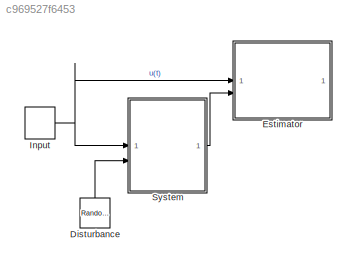
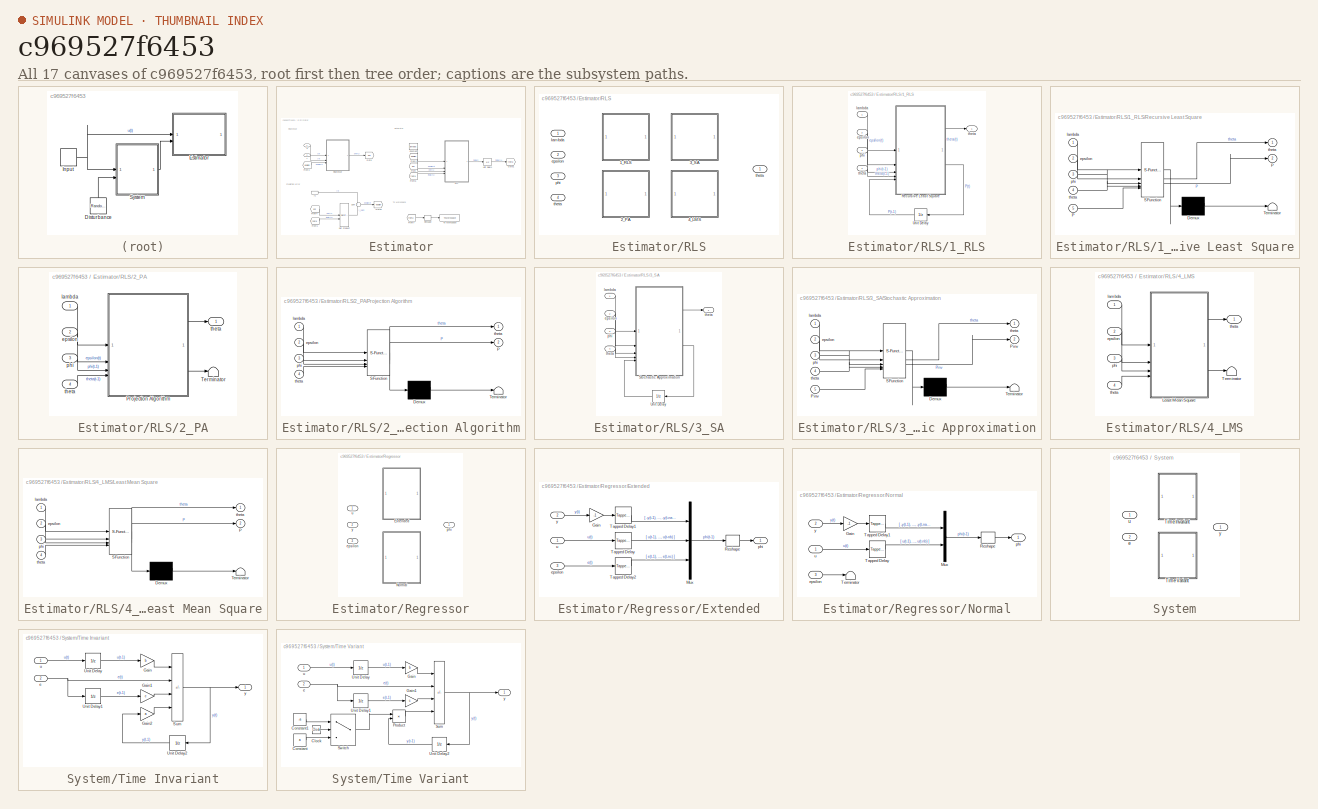
[diagram: thumbnail index - all 17 canvases of the model, root first then tree order]
MODEL slx_c969527f6453
KIND model
CONFIG AbsTol = auto
CONFIG EnableMultiTasking = off
CONFIG FixedStep = sample_time
CONFIG MaxStep = auto
CONFIG MinStep = auto
CONFIG RelTol = 1e-3
CONFIG SampleTimeConstraint = Unconstrained
CONFIG SolverName = FixedStepAuto
CONFIG StartTime = start_time
CONFIG StopTime = stop_time
BLOCK [RandomNumber] Disturbance
  Mean = e_mean
  SampleTime = sample_time
  Seed = e_seed
  Variance = e_var
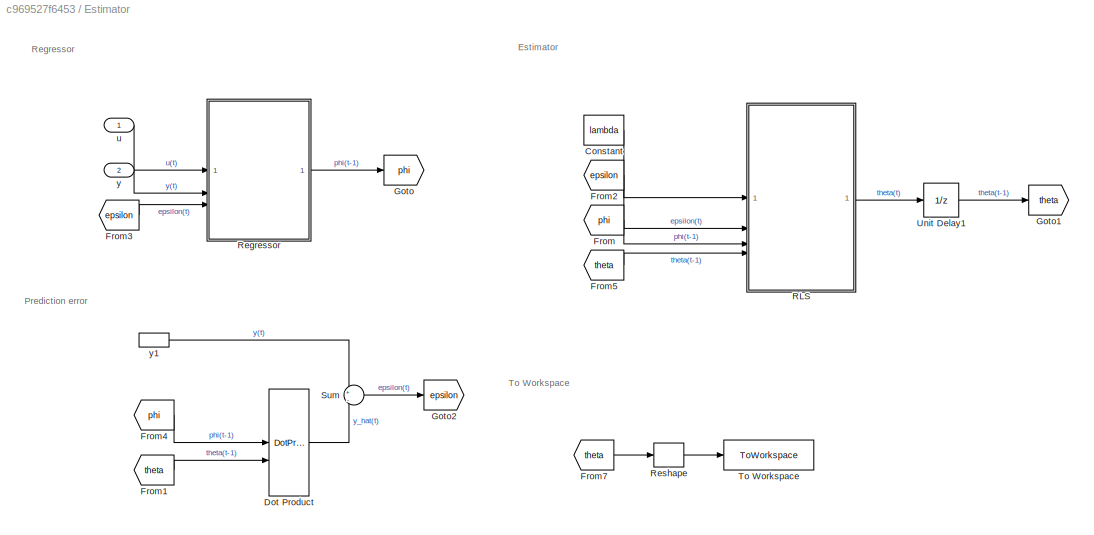
BLOCK [SubSystem] Estimator
BLOCK [Constant] Estimator/Constant
  Value = lambda
BLOCK [DotProduct] Estimator/Dot Product
  OutDataTypeStr = Inherit: Inherit via internal rule
BLOCK [From] Estimator/From
  GotoTag = phi
BLOCK [From] Estimator/From1
  GotoTag = theta
BLOCK [From] Estimator/From2
  GotoTag = epsilon
BLOCK [From] Estimator/From3
  GotoTag = epsilon
BLOCK [From] Estimator/From4
  GotoTag = phi
BLOCK [From] Estimator/From5
  GotoTag = theta
BLOCK [From] Estimator/From7
  GotoTag = theta
BLOCK [Goto] Estimator/Goto
  GotoTag = phi
BLOCK [Goto] Estimator/Goto1
  GotoTag = theta
BLOCK [Goto] Estimator/Goto2
  GotoTag = epsilon
BLOCK [SubSystem] Estimator/RLS
  Variant = on
  VariantControl = Choice
BLOCK [SubSystem] Estimator/RLS/1_RLS
  VariantControl = (default)
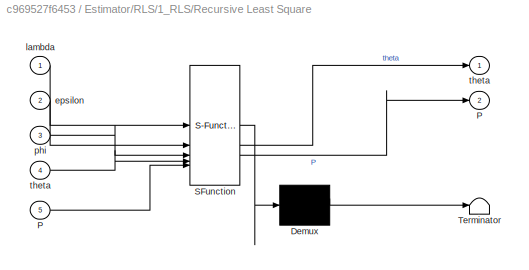
BLOCK [SubSystem] Estimator/RLS/1_RLS/Recursive Least Square
  ErrorFcn = Stateflow.Translate.translate
  LibrarySourceBlock = simulink/User-Defined\nFunctions/MATLAB Function
  PermitHierarchicalResolution = ExplicitOnly
  SFBlockType = MATLAB Function
  TreatAsAtomicUnit = on
  VariantControl = (default)
BLOCK [Demux] Estimator/RLS/1_RLS/Recursive Least Square/ Demux 
  Outputs = 1
BLOCK [S-Function] Estimator/RLS/1_RLS/Recursive Least Square/ SFunction 
  EnableBusSupport = on
  FunctionName = sf_sfun
  Parameters = n_phi
  PortCounts = [5 3]
  SFcnIsStateOwnerBlock = off
  SFunctionDeploymentMode = off
  Tag = Stateflow S-Function 1
BLOCK [Terminator] Estimator/RLS/1_RLS/Recursive Least Square/ Terminator 
BLOCK [Outport] Estimator/RLS/1_RLS/Recursive Least Square/P
  Port = 2
BLOCK [Inport] Estimator/RLS/1_RLS/Recursive Least Square/P 
  Port = 5
BLOCK [Inport] Estimator/RLS/1_RLS/Recursive Least Square/epsilon
  Port = 2
BLOCK [Inport] Estimator/RLS/1_RLS/Recursive Least Square/lambda
BLOCK [Inport] Estimator/RLS/1_RLS/Recursive Least Square/phi
  Port = 3
BLOCK [Outport] Estimator/RLS/1_RLS/Recursive Least Square/theta
BLOCK [Inport] Estimator/RLS/1_RLS/Recursive Least Square/theta 
  Port = 4
BLOCK [UnitDelay] Estimator/RLS/1_RLS/Unit Delay
  HasFrameUpgradeWarning = on
  InitialCondition = P0
  NameLocation = top
  SampleTime = sample_time
BLOCK [Inport] Estimator/RLS/1_RLS/epsilon
  Port = 2
BLOCK [Inport] Estimator/RLS/1_RLS/lambda
BLOCK [Inport] Estimator/RLS/1_RLS/phi
  Port = 3
BLOCK [Outport] Estimator/RLS/1_RLS/theta
BLOCK [Inport] Estimator/RLS/1_RLS/theta 
  Port = 4
BLOCK [SubSystem] Estimator/RLS/2_PA
  VariantControl = estimation_method == 2
BLOCK [SubSystem] Estimator/RLS/2_PA/Projection Algorithm
  ErrorFcn = Stateflow.Translate.translate
  LibrarySourceBlock = simulink/User-Defined\nFunctions/MATLAB Function
  PermitHierarchicalResolution = ExplicitOnly
  SFBlockType = MATLAB Function
  TreatAsAtomicUnit = on
  VariantControl = (default)
BLOCK [Demux] Estimator/RLS/2_PA/Projection Algorithm/ Demux 
  Outputs = 1
BLOCK [S-Function] Estimator/RLS/2_PA/Projection Algorithm/ SFunction 
  EnableBusSupport = on
  FunctionName = sf_sfun
  Parameters = alpha
  PortCounts = [4 3]
  SFcnIsStateOwnerBlock = off
  SFunctionDeploymentMode = off
  Tag = Stateflow S-Function 2
BLOCK [Terminator] Estimator/RLS/2_PA/Projection Algorithm/ Terminator 
BLOCK [Outport] Estimator/RLS/2_PA/Projection Algorithm/P
  Port = 2
BLOCK [Inport] Estimator/RLS/2_PA/Projection Algorithm/epsilon
  Port = 2
BLOCK [Inport] Estimator/RLS/2_PA/Projection Algorithm/lambda
BLOCK [Inport] Estimator/RLS/2_PA/Projection Algorithm/phi
  Port = 3
BLOCK [Outport] Estimator/RLS/2_PA/Projection Algorithm/theta
BLOCK [Inport] Estimator/RLS/2_PA/Projection Algorithm/theta 
  Port = 4
BLOCK [Terminator] Estimator/RLS/2_PA/Terminator
BLOCK [Inport] Estimator/RLS/2_PA/epsilon
  Port = 2
BLOCK [Inport] Estimator/RLS/2_PA/lambda
BLOCK [Inport] Estimator/RLS/2_PA/phi
  Port = 3
BLOCK [Outport] Estimator/RLS/2_PA/theta
BLOCK [Inport] Estimator/RLS/2_PA/theta 
  Port = 4
BLOCK [SubSystem] Estimator/RLS/3_SA
  VariantControl = estimation_method == 3
BLOCK [SubSystem] Estimator/RLS/3_SA/Stochastic Approximation
  ErrorFcn = Stateflow.Translate.translate
  LibrarySourceBlock = simulink/User-Defined\nFunctions/MATLAB Function
  PermitHierarchicalResolution = ExplicitOnly
  SFBlockType = MATLAB Function
  TreatAsAtomicUnit = on
  VariantControl = (default)
BLOCK [Demux] Estimator/RLS/3_SA/Stochastic Approximation/ Demux 
  Outputs = 1
BLOCK [S-Function] Estimator/RLS/3_SA/Stochastic Approximation/ SFunction 
  EnableBusSupport = on
  FunctionName = sf_sfun
  PortCounts = [5 3]
  SFcnIsStateOwnerBlock = off
  SFunctionDeploymentMode = off
  Tag = Stateflow S-Function 3
BLOCK [Terminator] Estimator/RLS/3_SA/Stochastic Approximation/ Terminator 
BLOCK [Outport] Estimator/RLS/3_SA/Stochastic Approximation/Pinv
  Port = 2
BLOCK [Inport] Estimator/RLS/3_SA/Stochastic Approximation/Pinv 
  Port = 5
BLOCK [Inport] Estimator/RLS/3_SA/Stochastic Approximation/epsilon
  Port = 2
BLOCK [Inport] Estimator/RLS/3_SA/Stochastic Approximation/lambda
BLOCK [Inport] Estimator/RLS/3_SA/Stochastic Approximation/phi
  Port = 3
BLOCK [Outport] Estimator/RLS/3_SA/Stochastic Approximation/theta
BLOCK [Inport] Estimator/RLS/3_SA/Stochastic Approximation/theta 
  Port = 4
BLOCK [UnitDelay] Estimator/RLS/3_SA/Unit Delay
  HasFrameUpgradeWarning = on
  InitialCondition = P0
  NameLocation = top
  SampleTime = sample_time
BLOCK [Inport] Estimator/RLS/3_SA/epsilon
  Port = 2
BLOCK [Inport] Estimator/RLS/3_SA/lambda
BLOCK [Inport] Estimator/RLS/3_SA/phi
  Port = 3
BLOCK [Outport] Estimator/RLS/3_SA/theta
BLOCK [Inport] Estimator/RLS/3_SA/theta 
  Port = 4
BLOCK [SubSystem] Estimator/RLS/4_LMS
  VariantControl = estimation_method == 4
BLOCK [SubSystem] Estimator/RLS/4_LMS/Least Mean Square
  ErrorFcn = Stateflow.Translate.translate
  LibrarySourceBlock = simulink/User-Defined\nFunctions/MATLAB Function
  PermitHierarchicalResolution = ExplicitOnly
  SFBlockType = MATLAB Function
  TreatAsAtomicUnit = on
  VariantControl = (default)
BLOCK [Demux] Estimator/RLS/4_LMS/Least Mean Square/ Demux 
  Outputs = 1
BLOCK [S-Function] Estimator/RLS/4_LMS/Least Mean Square/ SFunction 
  EnableBusSupport = on
  FunctionName = sf_sfun
  PortCounts = [4 3]
  SFcnIsStateOwnerBlock = off
  SFunctionDeploymentMode = off
  Tag = Stateflow S-Function 4
BLOCK [Terminator] Estimator/RLS/4_LMS/Least Mean Square/ Terminator 
BLOCK [Outport] Estimator/RLS/4_LMS/Least Mean Square/P
  Port = 2
BLOCK [Inport] Estimator/RLS/4_LMS/Least Mean Square/epsilon
  Port = 2
BLOCK [Inport] Estimator/RLS/4_LMS/Least Mean Square/lambda
BLOCK [Inport] Estimator/RLS/4_LMS/Least Mean Square/phi
  Port = 3
BLOCK [Outport] Estimator/RLS/4_LMS/Least Mean Square/theta
BLOCK [Inport] Estimator/RLS/4_LMS/Least Mean Square/theta 
  Port = 4
BLOCK [Terminator] Estimator/RLS/4_LMS/Terminator
BLOCK [Inport] Estimator/RLS/4_LMS/epsilon
  Port = 2
BLOCK [Inport] Estimator/RLS/4_LMS/lambda
BLOCK [Inport] Estimator/RLS/4_LMS/phi
  Port = 3
BLOCK [Outport] Estimator/RLS/4_LMS/theta
BLOCK [Inport] Estimator/RLS/4_LMS/theta 
  Port = 4
BLOCK [Inport] Estimator/RLS/epsilon
  Port = 2
BLOCK [Inport] Estimator/RLS/lambda
BLOCK [Inport] Estimator/RLS/phi
  Port = 3
BLOCK [Outport] Estimator/RLS/theta
BLOCK [Inport] Estimator/RLS/theta 
  Port = 4
BLOCK [SubSystem] Estimator/Regressor
  Variant = on
  VariantControl = Choice
BLOCK [SubSystem] Estimator/Regressor/Extended
  VariantControl = n_c > 0
BLOCK [Gain] Estimator/Regressor/Extended/Gain
  Gain = -1
BLOCK [Mux] Estimator/Regressor/Extended/Mux
  DisplayOption = bar
  Inputs = 3
BLOCK [Reshape] Estimator/Regressor/Extended/Reshape
  OutputDimensionality = Column vector (2-D)
BLOCK [Reference] Estimator/Regressor/Extended/Tapped Delay  REF=simulink/Discrete/Tapped Delay
  SourceBlock = simulink/Discrete/Tapped Delay
  SourceType = Tapped Delay Line
BLOCK [Reference] Estimator/Regressor/Extended/Tapped Delay1  REF=simulink/Discrete/Tapped Delay
  SourceBlock = simulink/Discrete/Tapped Delay
  SourceType = Tapped Delay Line
BLOCK [Reference] Estimator/Regressor/Extended/Tapped Delay2  REF=simulink/Discrete/Tapped Delay
  SourceBlock = simulink/Discrete/Tapped Delay
  SourceType = Tapped Delay Line
BLOCK [Inport] Estimator/Regressor/Extended/epsilon
  Port = 3
BLOCK [Outport] Estimator/Regressor/Extended/phi
BLOCK [Inport] Estimator/Regressor/Extended/u
BLOCK [Inport] Estimator/Regressor/Extended/y
  Port = 2
BLOCK [SubSystem] Estimator/Regressor/Normal
  VariantControl = (default)
BLOCK [Gain] Estimator/Regressor/Normal/Gain
  Gain = -1
BLOCK [Mux] Estimator/Regressor/Normal/Mux
  DisplayOption = bar
  Inputs = 2
BLOCK [Reshape] Estimator/Regressor/Normal/Reshape
  OutputDimensionality = Column vector (2-D)
BLOCK [Reference] Estimator/Regressor/Normal/Tapped Delay  REF=simulink/Discrete/Tapped Delay
  SourceBlock = simulink/Discrete/Tapped Delay
  SourceType = Tapped Delay Line
BLOCK [Reference] Estimator/Regressor/Normal/Tapped Delay1  REF=simulink/Discrete/Tapped Delay
  SourceBlock = simulink/Discrete/Tapped Delay
  SourceType = Tapped Delay Line
BLOCK [Terminator] Estimator/Regressor/Normal/Terminator
BLOCK [Inport] Estimator/Regressor/Normal/epsilon
  Port = 3
BLOCK [Outport] Estimator/Regressor/Normal/phi
BLOCK [Inport] Estimator/Regressor/Normal/u
BLOCK [Inport] Estimator/Regressor/Normal/y
  Port = 2
BLOCK [Inport] Estimator/Regressor/epsilon
  Port = 3
BLOCK [Outport] Estimator/Regressor/phi
BLOCK [Inport] Estimator/Regressor/u
BLOCK [Inport] Estimator/Regressor/y
  Port = 2
BLOCK [Reshape] Estimator/Reshape
BLOCK [Sum] Estimator/Sum
  Inputs = +|-
BLOCK [ToWorkspace] Estimator/To Workspace
  FixptAsFi = on
  MaxDataPoints = inf
  SampleTime = -1
  SaveFormat = Timeseries
  VariableName = theta
BLOCK [UnitDelay] Estimator/Unit Delay1
  HasFrameUpgradeWarning = on
  InitialCondition = theta0
  SampleTime = sample_time
BLOCK [Inport] Estimator/u
BLOCK [Inport] Estimator/y
  Port = 2
BLOCK [InportShadow] Estimator/y1
  Port = 2
BLOCK [DiscretePulseGenerator] Input
  Period = 100
  PulseType = Time based
  PulseWidth = 50
BLOCK [SubSystem] System
  Variant = on
  VariantControl = Choice
BLOCK [SubSystem] System/Time Invariant
  VariantControl = (default)
BLOCK [Gain] System/Time Invariant/Gain
  Gain = b
BLOCK [Gain] System/Time Invariant/Gain1
  Gain = c
BLOCK [Gain] System/Time Invariant/Gain2
  Gain = a
BLOCK [Sum] System/Time Invariant/Sum
  IconShape = rectangular
  Inputs = +++-
BLOCK [UnitDelay] System/Time Invariant/Unit Delay
  HasFrameUpgradeWarning = on
  SampleTime = sample_time
BLOCK [UnitDelay] System/Time Invariant/Unit Delay1
  HasFrameUpgradeWarning = on
  SampleTime = sample_time
BLOCK [UnitDelay] System/Time Invariant/Unit Delay2
  HasFrameUpgradeWarning = on
  NameLocation = top
  SampleTime = sample_time
BLOCK [Inport] System/Time Invariant/e
  Port = 2
BLOCK [Inport] System/Time Invariant/u
BLOCK [Outport] System/Time Invariant/y
BLOCK [SubSystem] System/Time Variant
  VariantControl = time_variant == 1
BLOCK [Clock] System/Time Variant/Clock
BLOCK [Constant] System/Time Variant/Constant
  Value = a
BLOCK [Constant] System/Time Variant/Constant1
  Value = -a
BLOCK [Gain] System/Time Variant/Gain
  Gain = b
BLOCK [Gain] System/Time Variant/Gain1
  Gain = c
BLOCK [Product] System/Time Variant/Product
BLOCK [Sum] System/Time Variant/Sum
  IconShape = rectangular
  Inputs = +++-
BLOCK [Switch] System/Time Variant/Switch
  Criteria = u2 > Threshold
  InputSameDT = off
  SaturateOnIntegerOverflow = off
  Threshold = stop_time/2
BLOCK [UnitDelay] System/Time Variant/Unit Delay
  HasFrameUpgradeWarning = on
  SampleTime = sample_time
BLOCK [UnitDelay] System/Time Variant/Unit Delay1
  HasFrameUpgradeWarning = on
  SampleTime = sample_time
BLOCK [UnitDelay] System/Time Variant/Unit Delay2
  HasFrameUpgradeWarning = on
  NameLocation = top
  SampleTime = sample_time
BLOCK [Inport] System/Time Variant/e
  Port = 2
BLOCK [Inport] System/Time Variant/u
BLOCK [Outport] System/Time Variant/y
BLOCK [Inport] System/e
  Port = 2
BLOCK [Inport] System/u
BLOCK [Outport] System/y
ANNOTATION Estimator: Estimator
ANNOTATION Estimator: Prediction error
ANNOTATION Estimator: Regressor
ANNOTATION Estimator: To Workspace
LINE Disturbance:1 -> System:2
LINE Estimator/Constant:1 -> Estimator/RLS:1
LINE Estimator/Dot Product:1 -> Estimator/Sum:2
LINE Estimator/From1:1 -> Estimator/Dot Product:2
LINE Estimator/From2:1 -> Estimator/RLS:2
LINE Estimator/From3:1 -> Estimator/Regressor:3
LINE Estimator/From4:1 -> Estimator/Dot Product:1
LINE Estimator/From5:1 -> Estimator/RLS:4
LINE Estimator/From7:1 -> Estimator/Reshape:1
LINE Estimator/From:1 -> Estimator/RLS:3
LINE Estimator/RLS/1_RLS/Recursive Least Square:1 -> Estimator/RLS/1_RLS/theta:1
LINE Estimator/RLS/1_RLS/Recursive Least Square:2 -> Estimator/RLS/1_RLS/Unit Delay:1
LINE Estimator/RLS/1_RLS/Unit Delay:1 -> Estimator/RLS/1_RLS/Recursive Least Square:5
LINE Estimator/RLS/1_RLS/epsilon:1 -> Estimator/RLS/1_RLS/Recursive Least Square:2
LINE Estimator/RLS/1_RLS/lambda:1 -> Estimator/RLS/1_RLS/Recursive Least Square:1
LINE Estimator/RLS/1_RLS/phi:1 -> Estimator/RLS/1_RLS/Recursive Least Square:3
LINE Estimator/RLS/1_RLS/theta :1 -> Estimator/RLS/1_RLS/Recursive Least Square:4
LINE Estimator/RLS/2_PA/Projection Algorithm:1 -> Estimator/RLS/2_PA/theta:1
LINE Estimator/RLS/2_PA/Projection Algorithm:2 -> Estimator/RLS/2_PA/Terminator:1
LINE Estimator/RLS/2_PA/epsilon:1 -> Estimator/RLS/2_PA/Projection Algorithm:2
LINE Estimator/RLS/2_PA/lambda:1 -> Estimator/RLS/2_PA/Projection Algorithm:1
LINE Estimator/RLS/2_PA/phi:1 -> Estimator/RLS/2_PA/Projection Algorithm:3
LINE Estimator/RLS/2_PA/theta :1 -> Estimator/RLS/2_PA/Projection Algorithm:4
LINE Estimator/RLS/3_SA/Stochastic Approximation:1 -> Estimator/RLS/3_SA/theta:1
LINE Estimator/RLS/3_SA/Stochastic Approximation:2 -> Estimator/RLS/3_SA/Unit Delay:1
LINE Estimator/RLS/3_SA/Unit Delay:1 -> Estimator/RLS/3_SA/Stochastic Approximation:5
LINE Estimator/RLS/3_SA/epsilon:1 -> Estimator/RLS/3_SA/Stochastic Approximation:2
LINE Estimator/RLS/3_SA/lambda:1 -> Estimator/RLS/3_SA/Stochastic Approximation:1
LINE Estimator/RLS/3_SA/phi:1 -> Estimator/RLS/3_SA/Stochastic Approximation:3
LINE Estimator/RLS/3_SA/theta :1 -> Estimator/RLS/3_SA/Stochastic Approximation:4
LINE Estimator/RLS/4_LMS/Least Mean Square:1 -> Estimator/RLS/4_LMS/theta:1
LINE Estimator/RLS/4_LMS/Least Mean Square:2 -> Estimator/RLS/4_LMS/Terminator:1
LINE Estimator/RLS/4_LMS/epsilon:1 -> Estimator/RLS/4_LMS/Least Mean Square:2
LINE Estimator/RLS/4_LMS/lambda:1 -> Estimator/RLS/4_LMS/Least Mean Square:1
LINE Estimator/RLS/4_LMS/phi:1 -> Estimator/RLS/4_LMS/Least Mean Square:3
LINE Estimator/RLS/4_LMS/theta :1 -> Estimator/RLS/4_LMS/Least Mean Square:4
LINE Estimator/RLS:1 -> Estimator/Unit Delay1:1
LINE Estimator/Regressor/Extended/Gain:1 -> Estimator/Regressor/Extended/Tapped Delay1:1
LINE Estimator/Regressor/Extended/Mux:1 -> Estimator/Regressor/Extended/Reshape:1
LINE Estimator/Regressor/Extended/Reshape:1 -> Estimator/Regressor/Extended/phi:1
LINE Estimator/Regressor/Extended/Tapped Delay1:1 -> Estimator/Regressor/Extended/Mux:1
LINE Estimator/Regressor/Extended/Tapped Delay2:1 -> Estimator/Regressor/Extended/Mux:3
LINE Estimator/Regressor/Extended/Tapped Delay:1 -> Estimator/Regressor/Extended/Mux:2
LINE Estimator/Regressor/Extended/epsilon:1 -> Estimator/Regressor/Extended/Tapped Delay2:1
LINE Estimator/Regressor/Extended/u:1 -> Estimator/Regressor/Extended/Tapped Delay:1
LINE Estimator/Regressor/Extended/y:1 -> Estimator/Regressor/Extended/Gain:1
LINE Estimator/Regressor/Normal/Gain:1 -> Estimator/Regressor/Normal/Tapped Delay1:1
LINE Estimator/Regressor/Normal/Mux:1 -> Estimator/Regressor/Normal/Reshape:1
LINE Estimator/Regressor/Normal/Reshape:1 -> Estimator/Regressor/Normal/phi:1
LINE Estimator/Regressor/Normal/Tapped Delay1:1 -> Estimator/Regressor/Normal/Mux:1
LINE Estimator/Regressor/Normal/Tapped Delay:1 -> Estimator/Regressor/Normal/Mux:2
LINE Estimator/Regressor/Normal/epsilon:1 -> Estimator/Regressor/Normal/Terminator:1
LINE Estimator/Regressor/Normal/u:1 -> Estimator/Regressor/Normal/Tapped Delay:1
LINE Estimator/Regressor/Normal/y:1 -> Estimator/Regressor/Normal/Gain:1
LINE Estimator/Regressor:1 -> Estimator/Goto:1
LINE Estimator/Reshape:1 -> Estimator/To Workspace:1
LINE Estimator/Sum:1 -> Estimator/Goto2:1
LINE Estimator/Unit Delay1:1 -> Estimator/Goto1:1
LINE Estimator/u:1 -> Estimator/Regressor:1
LINE Estimator/y1:1 -> Estimator/Sum:1
LINE Estimator/y:1 -> Estimator/Regressor:2
NET Input:1 -> Estimator:1, System:1
LINE System/Time Invariant/Gain1:1 -> System/Time Invariant/Sum:3
LINE System/Time Invariant/Gain2:1 -> System/Time Invariant/Sum:4
LINE System/Time Invariant/Gain:1 -> System/Time Invariant/Sum:1
NET System/Time Invariant/Sum:1 -> System/Time Invariant/Unit Delay2:1, System/Time Invariant/y:1
LINE System/Time Invariant/Unit Delay1:1 -> System/Time Invariant/Gain1:1
LINE System/Time Invariant/Unit Delay2:1 -> System/Time Invariant/Gain2:1
LINE System/Time Invariant/Unit Delay:1 -> System/Time Invariant/Gain:1
NET System/Time Invariant/e:1 -> System/Time Invariant/Sum:2, System/Time Invariant/Unit Delay1:1
LINE System/Time Invariant/u:1 -> System/Time Invariant/Unit Delay:1
LINE System/Time Variant/Clock:1 -> System/Time Variant/Switch:2
LINE System/Time Variant/Constant1:1 -> System/Time Variant/Switch:1
LINE System/Time Variant/Constant:1 -> System/Time Variant/Switch:3
LINE System/Time Variant/Gain1:1 -> System/Time Variant/Sum:3
LINE System/Time Variant/Gain:1 -> System/Time Variant/Sum:1
LINE System/Time Variant/Product:1 -> System/Time Variant/Sum:4
NET System/Time Variant/Sum:1 -> System/Time Variant/Unit Delay2:1, System/Time Variant/y:1
LINE System/Time Variant/Switch:1 -> System/Time Variant/Product:1
LINE System/Time Variant/Unit Delay1:1 -> System/Time Variant/Gain1:1
LINE System/Time Variant/Unit Delay2:1 -> System/Time Variant/Product:2
LINE System/Time Variant/Unit Delay:1 -> System/Time Variant/Gain:1
NET System/Time Variant/e:1 -> System/Time Variant/Sum:2, System/Time Variant/Unit Delay1:1
LINE System/Time Variant/u:1 -> System/Time Variant/Unit Delay:1
LINE System:1 -> Estimator:2
note: NET lines group one-source signal fan-out (src -> all destinations, sorted); 1:1 wires keep LINE
CHART Estimator/RLS/1_RLS/Recursive Least Square states=1 transitions=1
  STATE_LABEL 'eML_blk_kernel()'
  STATE_LABEL "SCRIPT:\nfunction [theta, P] = fcn(lambda, epsilon, phi, theta, P, n_phi)\nK = P * phi / (lambda + phi'*P*phi);\nP = (eye(n_phi) - K*phi') * P / lambda;\ntheta = theta + P * phi * epsilon;"
CHART Estimator/RLS/2_PA/Projection Algorithm states=1 transitions=1
  STATE_LABEL 'eML_blk_kernel()'
  STATE_LABEL "SCRIPT:\nfunction [theta, P] = fcn(lambda, epsilon, phi, theta, alpha)\n\nP = lambda / (alpha + phi' * phi);\ntheta = theta + P * phi * epsilon;"
CHART Estimator/RLS/3_SA/Stochastic Approximation states=1 transitions=1
  STATE_LABEL 'eML_blk_kernel()'
  STATE_LABEL "SCRIPT:\nfunction [theta, Pinv] = fcn(lambda, epsilon, phi, theta, Pinv)\nPinv = Pinv + phi'*phi;\nP = lambda / Pinv;\ntheta = theta + P * phi * epsilon;"
CHART Estimator/RLS/4_LMS/Least Mean Square states=1 transitions=1
  STATE_LABEL 'eML_blk_kernel()'
  STATE_LABEL 'SCRIPT:\nfunction [theta, P] = fcn(lambda, epsilon, phi, theta)\n\nP = lambda;\ntheta = theta + P * phi * epsilon;'
CHART  states=0 transitions=0
CHART  states=0 transitions=0
CHART  states=0 transitions=0
CHART  states=0 transitions=0
